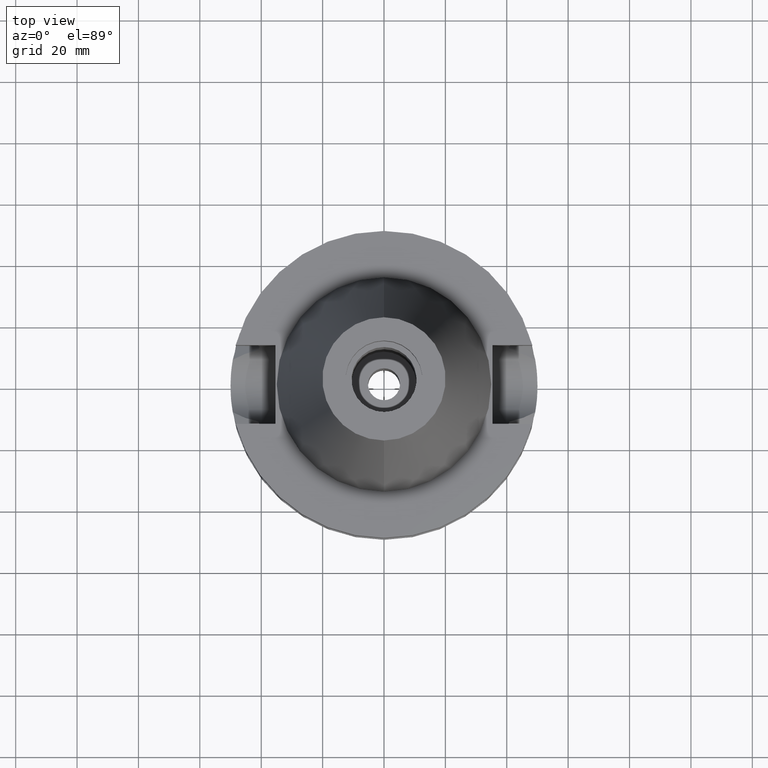
[diagram: clean part render]
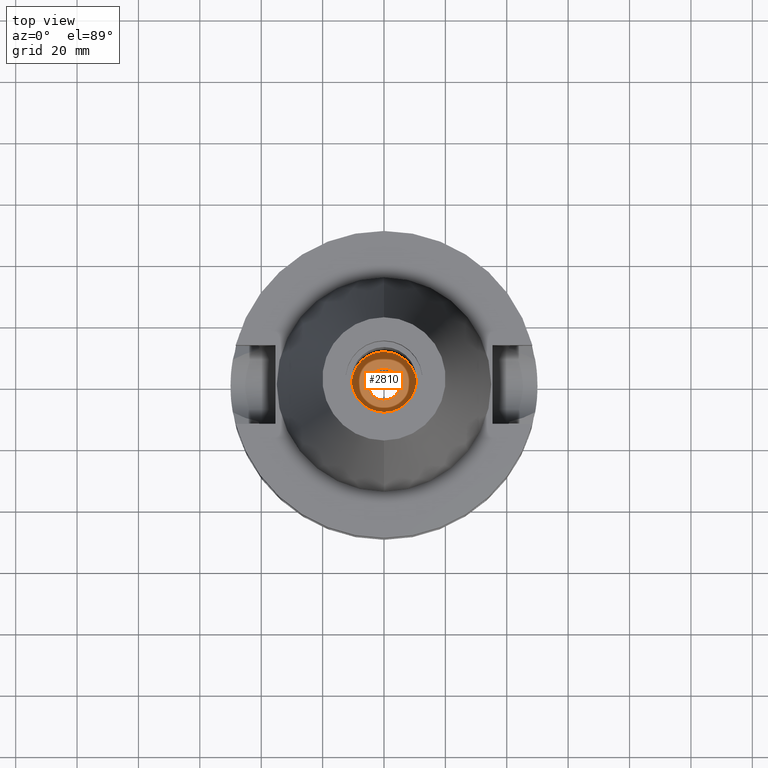
[diagram: same view with one face highlighted and labeled with its STEP entity id]
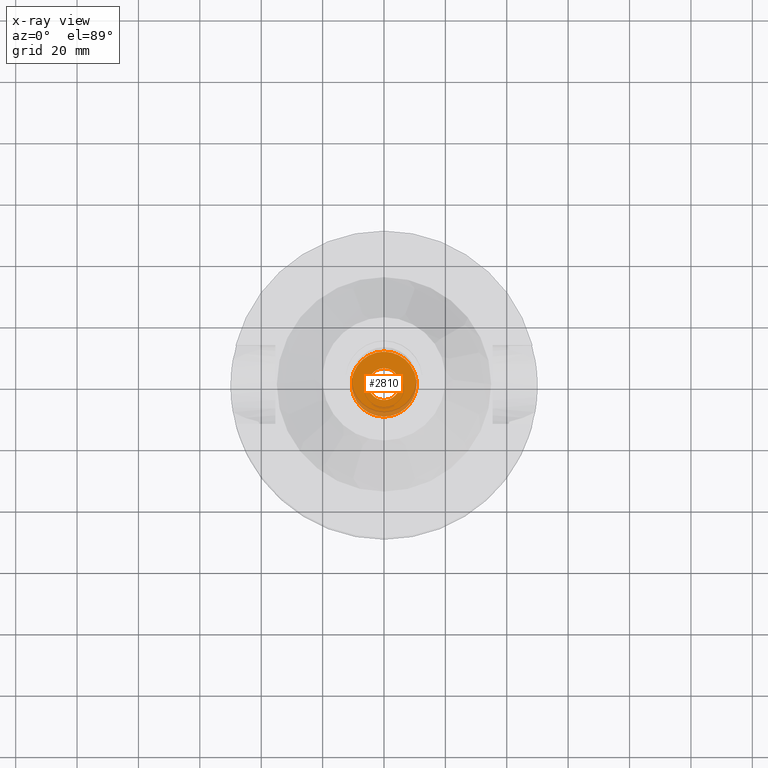
[diagram: x-ray of the same camera — body ghosted, the highlighted face saturated]
A machine part, top view. The second image highlights one B-rep face of the part: STEP entity #2810.
The next image is the same camera in x-ray: the body ghosted, the highlighted face saturated — about 12% of this face is hidden behind the body in this view.
In plain terms, the highlighted planar face has unit normal (0, 0, -1).
Its self-contained STEP definition (entity closure, byte-faithful):
#14 = VERTEX_POINT ( 'NONE', #157 ) ;
#17 = CIRCLE ( 'NONE', #2782, 5.200000000000000178 ) ;
#157 = CARTESIAN_POINT ( 'NONE',  ( 0.0000000000000000000, -10.59999999999999964, 1.800000000000000044 ) ) ;
#234 = EDGE_LOOP ( 'NONE', ( #1108, #2783 ) ) ;
#287 = DIRECTION ( 'NONE',  ( 0.0000000000000000000, 0.0000000000000000000, -1.000000000000000000 ) ) ;
#451 = DIRECTION ( 'NONE',  ( 0.0000000000000000000, 0.0000000000000000000, 1.000000000000000000 ) ) ;
#530 = CARTESIAN_POINT ( 'NONE',  ( 0.0000000000000000000, 1.246690441531999895E-14, 1.800000000000000044 ) ) ;
#604 = DIRECTION ( 'NONE',  ( 0.0000000000000000000, 0.0000000000000000000, 1.000000000000000000 ) ) ;
#608 = AXIS2_PLACEMENT_3D ( 'NONE', #2779, #604, #2292 ) ;
#653 = CARTESIAN_POINT ( 'NONE',  ( 0.0000000000000000000, 2.584678301939999885E-14, 1.800000000000000044 ) ) ;
#796 = DIRECTION ( 'NONE',  ( 0.0000000000000000000, -1.000000000000000000, 0.0000000000000000000 ) ) ;
#856 = DIRECTION ( 'NONE',  ( 0.0000000000000000000, 1.000000000000000000, 0.0000000000000000000 ) ) ;
#1039 = CIRCLE ( 'NONE', #2817, 10.59999999999999964 ) ;
#1043 = VERTEX_POINT ( 'NONE', #1867 ) ;
#1108 = ORIENTED_EDGE ( 'NONE', *, *, #1427, .F. ) ;
#1138 = EDGE_CURVE ( 'NONE', #14, #2209, #2221, .T. ) ;
#1339 = CARTESIAN_POINT ( 'NONE',  ( 0.0000000000000000000, 10.59999999999999964, 1.800000000000000044 ) ) ;
#1427 = EDGE_CURVE ( 'NONE', #2209, #14, #1039, .T. ) ;
#1512 = AXIS2_PLACEMENT_3D ( 'NONE', #530, #287, #796 ) ;
#1622 = CARTESIAN_POINT ( 'NONE',  ( 0.0000000000000000000, 2.584678301939999885E-14, 1.800000000000000044 ) ) ;
#1648 = CIRCLE ( 'NONE', #608, 5.200000000000000178 ) ;
#1813 = CARTESIAN_POINT ( 'NONE',  ( 0.0000000000000000000, 2.584678301939999885E-14, 1.800000000000000044 ) ) ;
#1838 = ORIENTED_EDGE ( 'NONE', *, *, #3047, .F. ) ;
#1860 = AXIS2_PLACEMENT_3D ( 'NONE', #1622, #2124, #3084 ) ;
#1867 = CARTESIAN_POINT ( 'NONE',  ( 0.0000000000000000000, -5.200000000000000178, 1.800000000000000044 ) ) ;
#2119 = DIRECTION ( 'NONE',  ( 0.0000000000000000000, 1.000000000000000000, 0.0000000000000000000 ) ) ;
#2124 = DIRECTION ( 'NONE',  ( 0.0000000000000000000, 0.0000000000000000000, -1.000000000000000000 ) ) ;
#2209 = VERTEX_POINT ( 'NONE', #1339 ) ;
#2221 = CIRCLE ( 'NONE', #1860, 10.59999999999999964 ) ;
#2253 = DIRECTION ( 'NONE',  ( 0.0000000000000000000, 0.0000000000000000000, -1.000000000000000000 ) ) ;
#2276 = FACE_BOUND ( 'NONE', #2792, .T. ) ;
#2292 = DIRECTION ( 'NONE',  ( 0.0000000000000000000, -1.000000000000000000, 0.0000000000000000000 ) ) ;
#2375 = VERTEX_POINT ( 'NONE', #2984 ) ;
#2456 = FACE_OUTER_BOUND ( 'NONE', #234, .T. ) ;
#2481 = EDGE_CURVE ( 'NONE', #2375, #1043, #17, .T. ) ;
#2779 = CARTESIAN_POINT ( 'NONE',  ( 0.0000000000000000000, 2.584678301939999885E-14, 1.800000000000000044 ) ) ;
#2782 = AXIS2_PLACEMENT_3D ( 'NONE', #653, #451, #2119 ) ;
#2783 = ORIENTED_EDGE ( 'NONE', *, *, #1138, .F. ) ;
#2792 = EDGE_LOOP ( 'NONE', ( #2981, #1838 ) ) ;
#2810 = ADVANCED_FACE ( 'NONE', ( #2456, #2276 ), #2954, .F. ) ;
#2817 = AXIS2_PLACEMENT_3D ( 'NONE', #1813, #2253, #856 ) ;
#2954 = PLANE ( 'NONE',  #1512 ) ;
#2981 = ORIENTED_EDGE ( 'NONE', *, *, #2481, .F. ) ;
#2984 = CARTESIAN_POINT ( 'NONE',  ( 0.0000000000000000000, 5.200000000000000178, 1.800000000000000044 ) ) ;
#3047 = EDGE_CURVE ( 'NONE', #1043, #2375, #1648, .T. ) ;
#3084 = DIRECTION ( 'NONE',  ( 0.0000000000000000000, -1.000000000000000000, 0.0000000000000000000 ) ) ;